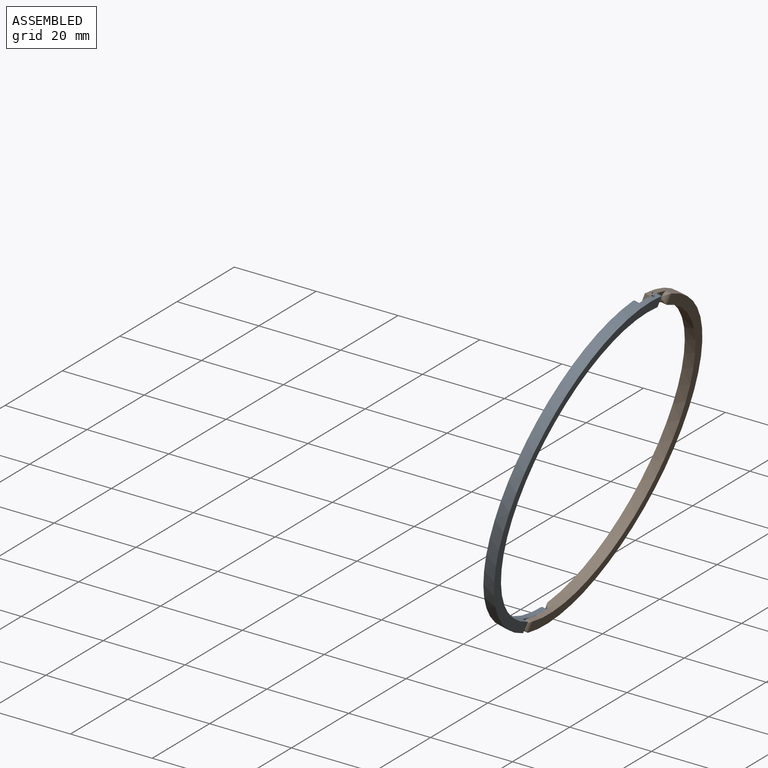
[diagram: assembled view]
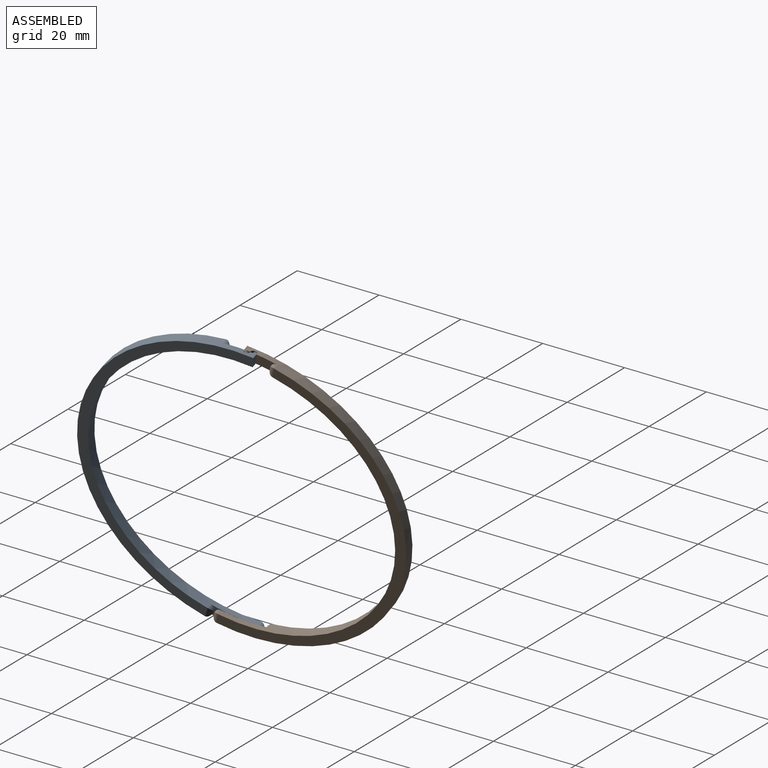
[diagram: assembled view, second angle]
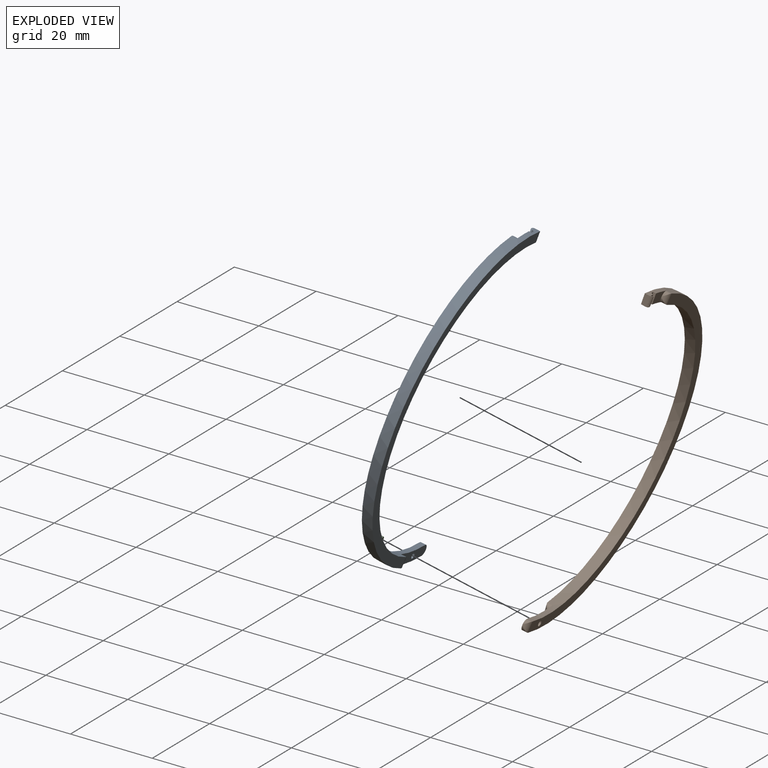
[diagram: exploded view]
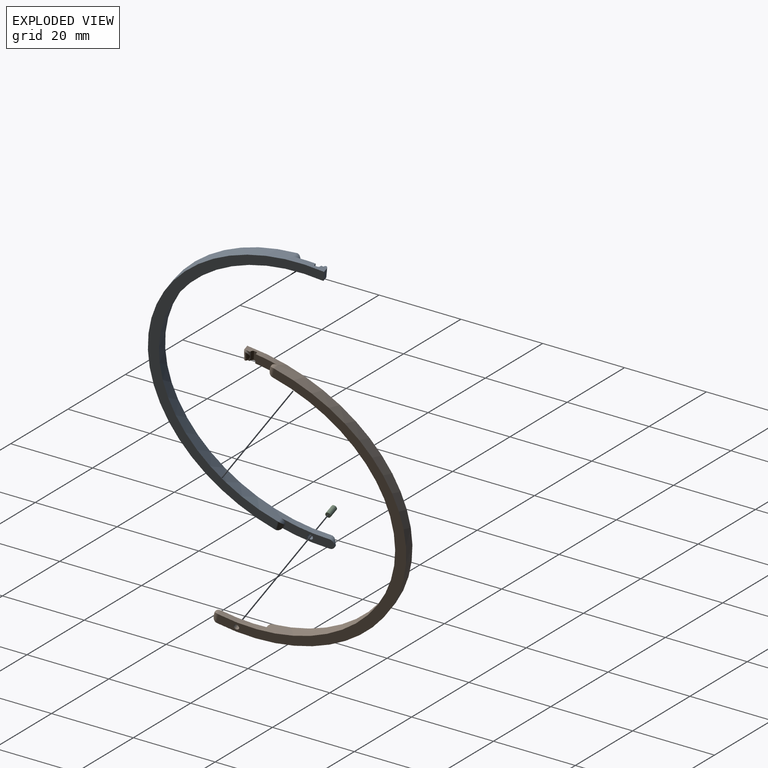
[diagram: exploded view, second angle]
ASSEMBLY  parts=3 mates=2
PART A: 26 faces, bbox 54.7x2.8x75.9 mm
  f0: plane 1.63x1.14mm, normal (0,-1,0), area 0.3mm2, adj f3,f18,f24
  f1: plane 1.68x1.21mm, normal (0,-1,0), area 0.4mm2, adj f4,f16,f24
  f2: plane 5.38x3.71mm, normal (0,-1,0), area 9.8mm2, adj f3,f4,f19,f21,f22
  f3: cylinder r=35.56mm len=69.82mm, axis (0,1,0), area 271.9mm2, adj f0,f2,f5,f6,f7,f10,f11,f13
  f4: cylinder r=38.1mm len=74.8mm, axis (0,1,0), area 291.4mm2, adj f1,f2,f5,f6,f7,f9,f12,f15
  f5: plane 74.82x45.81mm, normal (0,-1,0), area 286.2mm2, adj f3,f4,f8,f9,f10,f20,f21
  f6: plane 69.95x53.1mm, normal (0,1,0), area 277.3mm2, adj f3,f4,f12,f13,f15
  f7: plane 12.33x7.05mm, normal (0,1,0), area 27.8mm2, adj f3,f4,f8,f9,f11,f12,f14
  f8: cylinder r=0.64mm len=1.27mm, axis (0,-1,0), area 5.1mm2, adj f5,f7
  f9: cylinder r=1.27mm len=1.58mm, axis (0,1,0), area 1.7mm2, adj f4,f5,f7,f10
  f10: cylinder r=1.27mm len=2.77mm, axis (-0.23,0,0.97), area 3.2mm2, adj f3,f5,f9,f11
  f11: cylinder r=1.27mm len=1.52mm, axis (0,1,0), area 1.2mm2, adj f3,f7,f10
  f12: cylinder r=1.27mm len=1.78mm, axis (0,1,0), area 1.7mm2, adj f4,f6,f7,f13
  f13: cylinder r=1.27mm len=2.83mm, axis (0.52,0,-0.85), area 3.2mm2, adj f3,f6,f12,f14
  f14: cylinder r=1.27mm len=1.72mm, axis (0,1,0), area 1.2mm2, adj f3,f7,f13
  f15: plane 2.38x1.2mm, normal (-0.92,0,-0.39), area 2.8mm2, adj f3,f4,f6,f25
  f16: cylinder r=1.27mm len=1.68mm, axis (0,1,0), area 0.7mm2, adj f1,f4,f17,f25
  f17: cylinder r=1.27mm len=1.58mm, axis (-0.36,0,0.93), area 0.3mm2, adj f16,f18,f25
  f18: cylinder r=1.27mm len=1.63mm, axis (0,1,0), area 0.5mm2, adj f0,f3,f17,f25
  f19: cylinder r=1.27mm len=1.49mm, axis (0,1,0), area 1.2mm2, adj f2,f3,f20
  f20: cylinder r=1.27mm len=2.77mm, axis (-0.23,0,0.97), area 3.2mm2, adj f3,f5,f19,f21
  f21: cylinder r=1.27mm len=1.54mm, axis (0,1,0), area 1.7mm2, adj f2,f4,f5,f20
  f22: plane 2.37x0.92mm, normal (-0.93,0,-0.36), area 1.6mm2, adj f2,f3,f4,f23
  f23: plane 2.58x1.51mm, normal (0,-1,0), area 1.6mm2, adj f3,f4,f22,f24
  f24: cylinder r=0.64mm len=2.6mm, axis (0.36,0,-0.93), area 2.5mm2, adj f0,f1,f3,f4,f23
  f25: bspline ~7.33x4.03mm, area 3.4mm2, adj f3,f4,f15,f16,f17,f18
PART B: same geometry as A
PART C: 3 faces, bbox 1.3x2.5x1.3 mm
  f0: cylinder r=0.64mm len=2.54mm, axis (0,1,0), area 10.1mm2, adj f1,f2
  f1: plane 1.27x1.27mm, normal (0,-1,0), area 1.3mm2, adj f0
  f2: plane 1.27x1.27mm, normal (0,1,0), area 1.3mm2, adj f0
PLACE A rot(axis=(-0.05,0.23,-0.97),88.3deg) t=(18.73,-21.21,-23.03)mm
PLACE B rot(axis=(-0.15,0.36,0.92),103.8deg) t=(18.84,-22.02,-22.89)mm
PLACE C rot(axis=(0.3,0.54,-0.79),106.9deg) t=(11.05,-29.1,-58.2)mm
MATE revolute B.f8 <-> A.f8  axis (-0.96,-0.08,0.26) through (9.83,-29.2,-57.87)mm
MATE fastened C.f0 <-> B.f8  axis (0.96,0.08,-0.26) through (11.05,-29.1,-58.2)mm
